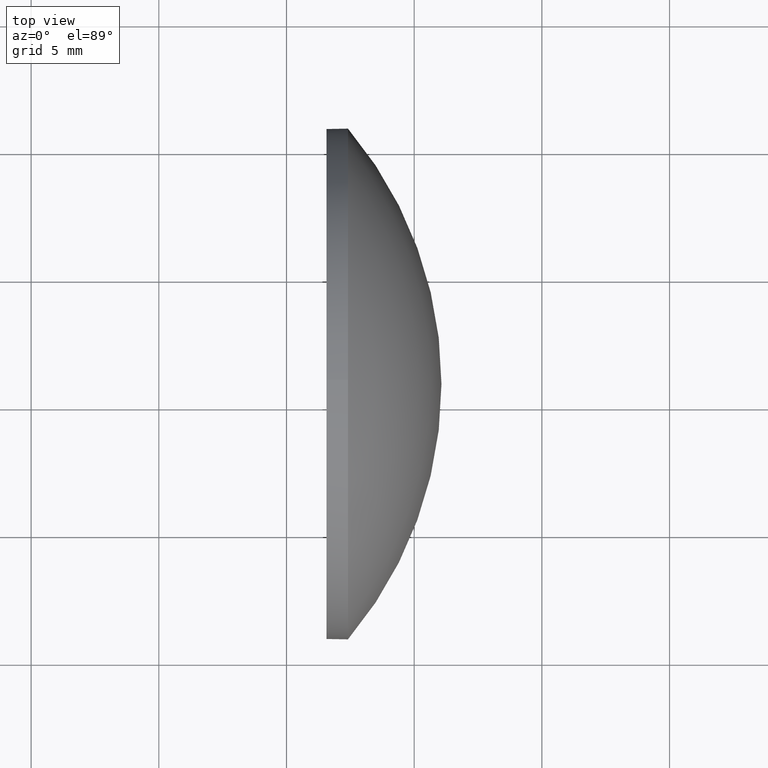
[diagram: clean part render]
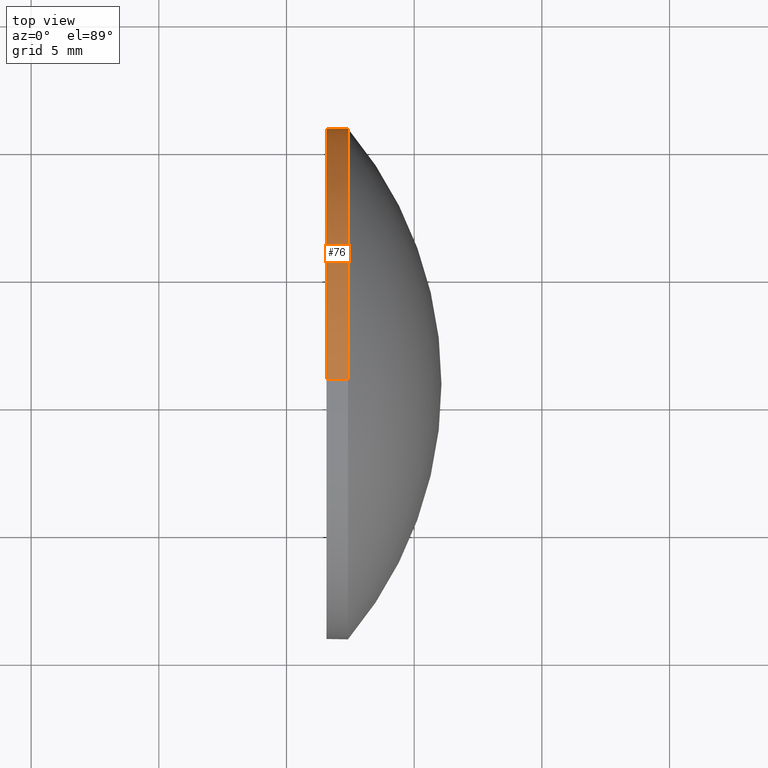
[diagram: same view with one face highlighted and labeled with its STEP entity id]
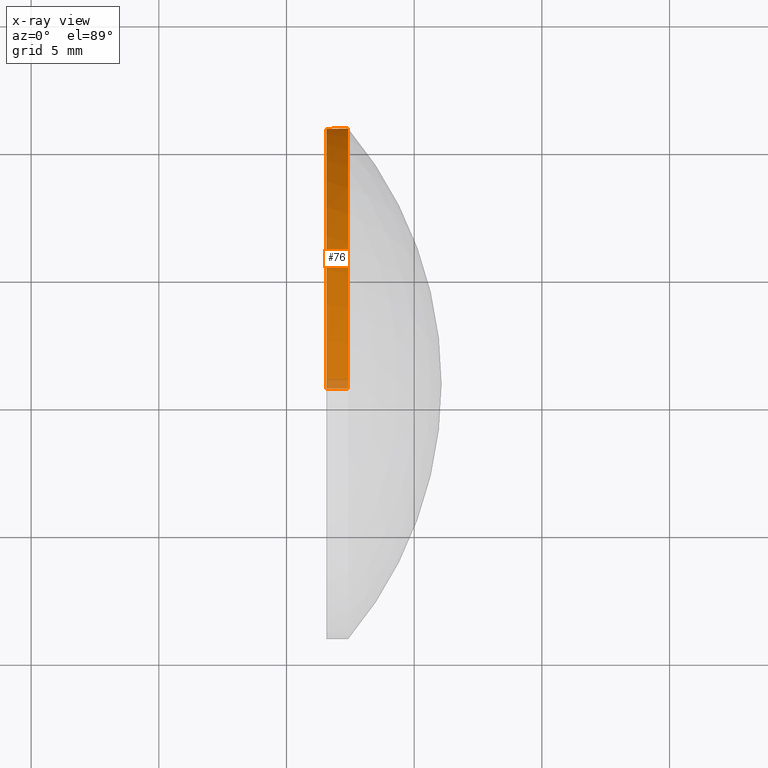
[diagram: x-ray of the same camera — body ghosted, the highlighted face saturated]
A machine part, top view. The second image highlights one B-rep face of the part: STEP entity #76.
The next image is the same camera in x-ray: the body ghosted, the highlighted face saturated — about 3% of this face is hidden behind the body in this view.
In plain terms, the highlighted cylindrical surface (partial cylindrical patch) has radius 10 mm, axis along (-1, -0, -0).
Its self-contained STEP definition (entity closure, byte-faithful):
#1 = CARTESIAN_POINT ( 'NONE',  ( 501.5675276990623400, 160.8342270699432700, 0.0000000000000000000 ) ) ;
#5 = EDGE_LOOP ( 'NONE', ( #8, #158, #129, #162, #146 ) ) ;
#8 = ORIENTED_EDGE ( 'NONE', *, *, #97, .T. ) ;
#9 = CIRCLE ( 'NONE', #16, 10.00000000000000900 ) ;
#14 = CARTESIAN_POINT ( 'NONE',  ( 496.9109419236094700, 160.8342270699432700, -10.00000000000000900 ) ) ;
#16 = AXIS2_PLACEMENT_3D ( 'NONE', #1, #18, #124 ) ;
#18 = DIRECTION ( 'NONE',  ( -1.000000000000000000, -0.0000000000000000000, -0.0000000000000000000 ) ) ;
#23 = LINE ( 'NONE', #14, #134 ) ;
#44 = VERTEX_POINT ( 'NONE', #177 ) ;
#47 = CARTESIAN_POINT ( 'NONE',  ( 496.9109419236094700, 160.8342270699432700, 10.00000000000000900 ) ) ;
#49 = EDGE_CURVE ( 'NONE', #44, #132, #23, .T. ) ;
#57 = CYLINDRICAL_SURFACE ( 'NONE', #79, 10.00000000000000900 ) ;
#61 = CARTESIAN_POINT ( 'NONE',  ( 502.4075276990623700, 160.8342270699432700, 0.0000000000000000000 ) ) ;
#62 = CARTESIAN_POINT ( 'NONE',  ( 501.5675276990623400, 160.8342270699432700, -10.00000000000000900 ) ) ;
#66 = CARTESIAN_POINT ( 'NONE',  ( 496.9109419236094700, 160.8342270699432700, 0.0000000000000000000 ) ) ;
#70 = CARTESIAN_POINT ( 'NONE',  ( 502.4075276990623700, 160.8342270699432700, 10.00000000000000900 ) ) ;
#76 = ADVANCED_FACE ( 'NONE', ( #137 ), #57, .T. ) ;
#77 = DIRECTION ( 'NONE',  ( 0.0000000000000000000, 0.0000000000000000000, 1.000000000000000000 ) ) ;
#78 = DIRECTION ( 'NONE',  ( -1.000000000000000000, -0.0000000000000000000, -0.0000000000000000000 ) ) ;
#79 = AXIS2_PLACEMENT_3D ( 'NONE', #66, #81, #170 ) ;
#81 = DIRECTION ( 'NONE',  ( -1.000000000000000000, -0.0000000000000000000, -0.0000000000000000000 ) ) ;
#83 = DIRECTION ( 'NONE',  ( -1.000000000000000000, -0.0000000000000000000, -0.0000000000000000000 ) ) ;
#88 = CIRCLE ( 'NONE', #145, 10.00000000000000900 ) ;
#95 = DIRECTION ( 'NONE',  ( -1.000000000000000000, -0.0000000000000000000, -0.0000000000000000000 ) ) ;
#97 = EDGE_CURVE ( 'NONE', #110, #44, #130, .T. ) ;
#110 = VERTEX_POINT ( 'NONE', #116 ) ;
#116 = CARTESIAN_POINT ( 'NONE',  ( 502.4075276990623700, 170.8342270699432700, 0.0000000000000000000 ) ) ;
#119 = CARTESIAN_POINT ( 'NONE',  ( 501.5675276990623400, 160.8342270699432700, 10.00000000000000900 ) ) ;
#123 = CARTESIAN_POINT ( 'NONE',  ( 502.4075276990623700, 160.8342270699432700, 0.0000000000000000000 ) ) ;
#124 = DIRECTION ( 'NONE',  ( 0.0000000000000000000, 0.0000000000000000000, 1.000000000000000000 ) ) ;
#125 = VERTEX_POINT ( 'NONE', #70 ) ;
#126 = VERTEX_POINT ( 'NONE', #119 ) ;
#129 = ORIENTED_EDGE ( 'NONE', *, *, #142, .F. ) ;
#130 = CIRCLE ( 'NONE', #131, 10.00000000000000900 ) ;
#131 = AXIS2_PLACEMENT_3D ( 'NONE', #123, #95, #167 ) ;
#132 = VERTEX_POINT ( 'NONE', #62 ) ;
#134 = VECTOR ( 'NONE', #147, 1000.000000000000000 ) ;
#136 = EDGE_CURVE ( 'NONE', #125, #110, #88, .T. ) ;
#137 = FACE_OUTER_BOUND ( 'NONE', #5, .T. ) ;
#142 = EDGE_CURVE ( 'NONE', #126, #132, #9, .T. ) ;
#145 = AXIS2_PLACEMENT_3D ( 'NONE', #61, #78, #77 ) ;
#146 = ORIENTED_EDGE ( 'NONE', *, *, #136, .T. ) ;
#147 = DIRECTION ( 'NONE',  ( -1.000000000000000000, -0.0000000000000000000, -0.0000000000000000000 ) ) ;
#156 = EDGE_CURVE ( 'NONE', #125, #126, #171, .T. ) ;
#158 = ORIENTED_EDGE ( 'NONE', *, *, #49, .T. ) ;
#160 = VECTOR ( 'NONE', #83, 1000.000000000000000 ) ;
#162 = ORIENTED_EDGE ( 'NONE', *, *, #156, .F. ) ;
#167 = DIRECTION ( 'NONE',  ( 0.0000000000000000000, 0.0000000000000000000, 1.000000000000000000 ) ) ;
#170 = DIRECTION ( 'NONE',  ( 0.0000000000000000000, 0.0000000000000000000, 1.000000000000000000 ) ) ;
#171 = LINE ( 'NONE', #47, #160 ) ;
#177 = CARTESIAN_POINT ( 'NONE',  ( 502.4075276990623700, 160.8342270699432700, -10.00000000000000900 ) ) ;